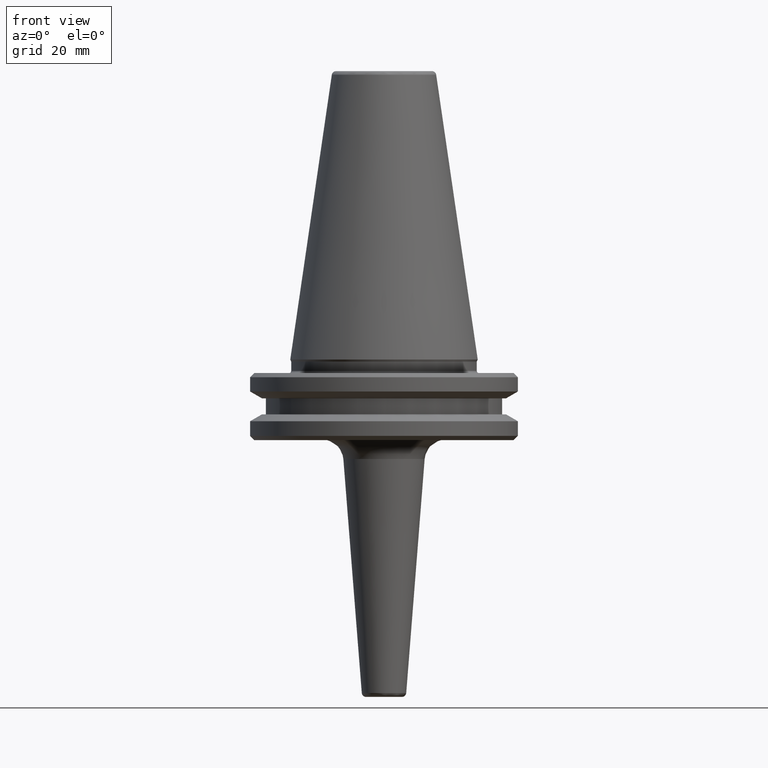
[diagram: clean part render]
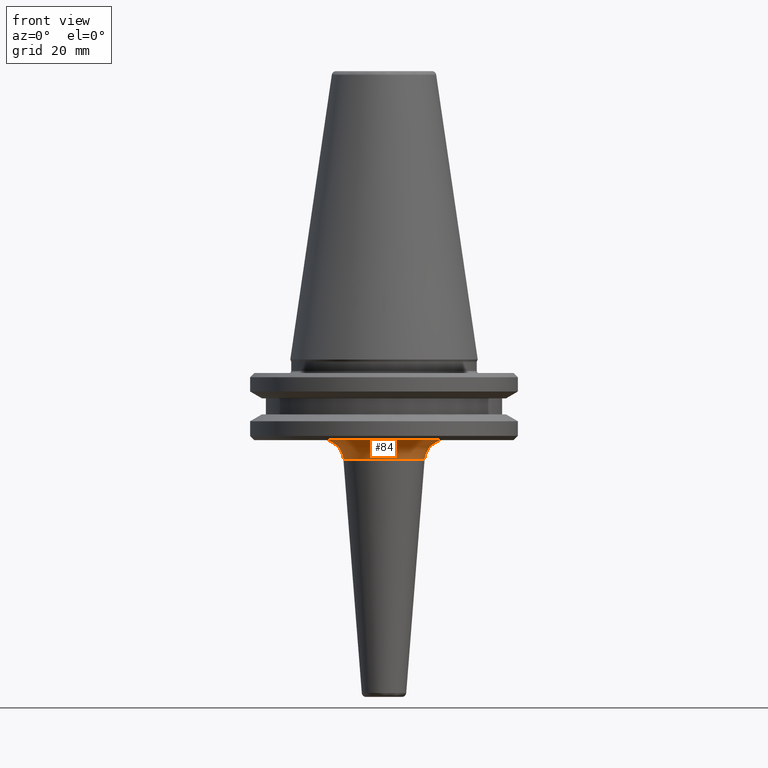
[diagram: same view with one face highlighted and labeled with its STEP entity id]
A machine part, front view. The second image highlights one B-rep face of the part: STEP entity #84.
In plain terms, the highlighted face is a freeform B-spline surface patch.
Its self-contained STEP definition (entity closure, byte-faithful):
#11 = CARTESIAN_POINT ( 'NONE',  ( -14.62195245829108400, 1.790672727533095000E-015, -23.98284271247460400 ) ) ;
#84 = ADVANCED_FACE ( 'NONE', ( #190 ), #217, .F. ) ;
#131 = CARTESIAN_POINT ( 'NONE',  ( -13.54591944521316200, 1.658896689008818800E-015, -19.10000000000000500 ) ) ;
#136 = CARTESIAN_POINT ( 'NONE',  ( 0.0000000000000000000, 0.0000000000000000000, -19.10000000000000500 ) ) ;
#143 = CARTESIAN_POINT ( 'NONE',  ( 9.816536276817023700, -19.63307255363406200, -21.31397034090091200 ) ) ;
#145 = EDGE_CURVE ( 'NONE', #866, #691, #1205, .T. ) ;
#182 = CARTESIAN_POINT ( 'NONE',  ( 9.637365789629459600, 0.0000000000000000000, -23.59054723383538400 ) ) ;
#185 = CARTESIAN_POINT ( 'NONE',  ( -9.637365789625487600, -19.27473157925096500, -23.59054723383507100 ) ) ;
#190 = FACE_OUTER_BOUND ( 'NONE', #856, .T. ) ;
#217 =( BOUNDED_SURFACE ( )  B_SPLINE_SURFACE ( 3, 3, ( 
 ( #963, #185, #1198, #336 ),
 ( #841, #472, #143, #653 ),
 ( #351, #1153, #573, #547 ),
 ( #1299, #576, #1259, #993 ) ),
 .UNSPECIFIED., .F., .F., .T. ) 
 B_SPLINE_SURFACE_WITH_KNOTS ( ( 4, 4 ),
 ( 4, 4 ),
 ( 0.0000000000000000000, 1.000000000000000000 ),
 ( 0.0000000000000000000, 1.000000000000000000 ),
 .UNSPECIFIED. ) 
 GEOMETRIC_REPRESENTATION_ITEM ( )  RATIONAL_B_SPLINE_SURFACE ( (
 ( 1.000000000000000000, 0.3333333333333334300, 0.3333333333333334300, 1.000000000000000000),
 ( 0.8689874251255320600, 0.2896624750418441100, 0.2896624750418441100, 0.8689874251255320600),
 ( 0.8689874251255320600, 0.2896624750418441100, 0.2896624750418441100, 0.8689874251255320600),
 ( 1.000000000000000000, 0.3333333333333334300, 0.3333333333333334300, 1.000000000000000000) ) ) 
 REPRESENTATION_ITEM ( '' )  SURFACE ( )  );
#230 = DIRECTION ( 'NONE',  ( -1.224646799147353200E-016, -1.000000000000000000, 0.0000000000000000000 ) ) ;
#251 = DIRECTION ( 'NONE',  ( 1.000000000000000000, 0.0000000000000000000, 0.0000000000000000000 ) ) ;
#263 = EDGE_CURVE ( 'NONE', #1010, #691, #683, .T. ) ;
#336 = CARTESIAN_POINT ( 'NONE',  ( 9.637365789625484100, -2.360473833295410800E-015, -23.59054723383507100 ) ) ;
#351 = CARTESIAN_POINT ( 'NONE',  ( -11.31581138812375400, 1.385787219622092100E-015, -19.59144935306408200 ) ) ;
#420 = DIRECTION ( 'NONE',  ( 1.000000000000000000, 0.0000000000000000000, 0.0000000000000000000 ) ) ;
#423 = EDGE_CURVE ( 'NONE', #1142, #1010, #996, .T. ) ;
#461 = ORIENTED_EDGE ( 'NONE', *, *, #423, .F. ) ;
#472 = CARTESIAN_POINT ( 'NONE',  ( -9.816536276817032600, -19.63307255363405400, -21.31397034090091200 ) ) ;
#473 = DIRECTION ( 'NONE',  ( 0.0000000000000000000, 0.0000000000000000000, 1.000000000000000000 ) ) ;
#506 = DIRECTION ( 'NONE',  ( -0.0000000000000000000, -0.0000000000000000000, -1.000000000000000000 ) ) ;
#507 = CARTESIAN_POINT ( 'NONE',  ( 0.0000000000000000000, 0.0000000000000000000, -23.59054723383538400 ) ) ;
#530 = ORIENTED_EDGE ( 'NONE', *, *, #145, .T. ) ;
#547 = CARTESIAN_POINT ( 'NONE',  ( 11.31581138812375400, -2.771574439244184300E-015, -19.59144935306408200 ) ) ;
#573 = CARTESIAN_POINT ( 'NONE',  ( 11.31581138812374800, -22.63162277624750700, -19.59144935306408200 ) ) ;
#576 = CARTESIAN_POINT ( 'NONE',  ( -13.54591944521316000, -27.09183889042631700, -19.10000000000000900 ) ) ;
#612 = EDGE_CURVE ( 'NONE', #866, #1142, #926, .T. ) ;
#634 = CARTESIAN_POINT ( 'NONE',  ( 13.54591944521316200, 0.0000000000000000000, -19.10000000000000500 ) ) ;
#653 = CARTESIAN_POINT ( 'NONE',  ( 9.816536276817027200, -2.404357946023570600E-015, -21.31397034090091600 ) ) ;
#659 = DIRECTION ( 'NONE',  ( -1.000000000000000000, 1.224646799147352500E-016, 0.0000000000000000000 ) ) ;
#661 = ORIENTED_EDGE ( 'NONE', *, *, #612, .F. ) ;
#683 = CIRCLE ( 'NONE', #1279, 13.54591944521316000 ) ;
#691 = VERTEX_POINT ( 'NONE', #634 ) ;
#715 = CARTESIAN_POINT ( 'NONE',  ( -9.637365789629459600, 1.180236916648192300E-015, -23.59054723383538400 ) ) ;
#761 = AXIS2_PLACEMENT_3D ( 'NONE', #950, #900, #970 ) ;
#841 = CARTESIAN_POINT ( 'NONE',  ( -9.816536276817027200, 1.202178973011785300E-015, -21.31397034090091600 ) ) ;
#856 = EDGE_LOOP ( 'NONE', ( #461, #661, #530, #1040 ) ) ;
#860 = AXIS2_PLACEMENT_3D ( 'NONE', #11, #230, #659 ) ;
#866 = VERTEX_POINT ( 'NONE', #182 ) ;
#900 = DIRECTION ( 'NONE',  ( 0.0000000000000000000, 1.000000000000000000, 0.0000000000000000000 ) ) ;
#926 = CIRCLE ( 'NONE', #1049, 9.637365789625461000 ) ;
#950 = CARTESIAN_POINT ( 'NONE',  ( 14.62195245829108400, 0.0000000000000000000, -23.98284271247460400 ) ) ;
#963 = CARTESIAN_POINT ( 'NONE',  ( -9.637365789625484100, 1.180236916647705400E-015, -23.59054723383507100 ) ) ;
#970 = DIRECTION ( 'NONE',  ( 1.000000000000000000, 0.0000000000000000000, 0.0000000000000000000 ) ) ;
#993 = CARTESIAN_POINT ( 'NONE',  ( 13.54591944521316000, -3.317793378017637100E-015, -19.10000000000000500 ) ) ;
#996 = CIRCLE ( 'NONE', #860, 4.999999999999985800 ) ;
#1010 = VERTEX_POINT ( 'NONE', #131 ) ;
#1040 = ORIENTED_EDGE ( 'NONE', *, *, #263, .F. ) ;
#1049 = AXIS2_PLACEMENT_3D ( 'NONE', #507, #506, #420 ) ;
#1142 = VERTEX_POINT ( 'NONE', #715 ) ;
#1153 = CARTESIAN_POINT ( 'NONE',  ( -11.31581138812375700, -22.63162277624750700, -19.59144935306408200 ) ) ;
#1198 = CARTESIAN_POINT ( 'NONE',  ( 9.637365789625478700, -19.27473157925096800, -23.59054723383507100 ) ) ;
#1205 = CIRCLE ( 'NONE', #761, 4.999999999999985800 ) ;
#1259 = CARTESIAN_POINT ( 'NONE',  ( 13.54591944521315300, -27.09183889042631700, -19.10000000000000900 ) ) ;
#1279 = AXIS2_PLACEMENT_3D ( 'NONE', #136, #473, #251 ) ;
#1299 = CARTESIAN_POINT ( 'NONE',  ( -13.54591944521316000, 1.658896689008818600E-015, -19.10000000000000500 ) ) ;